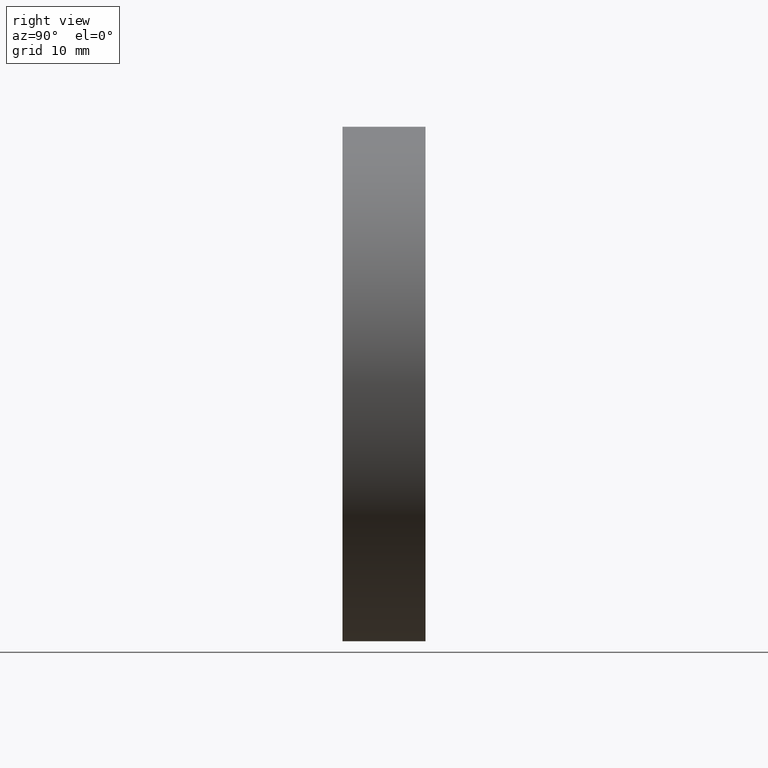
[diagram: clean part render]
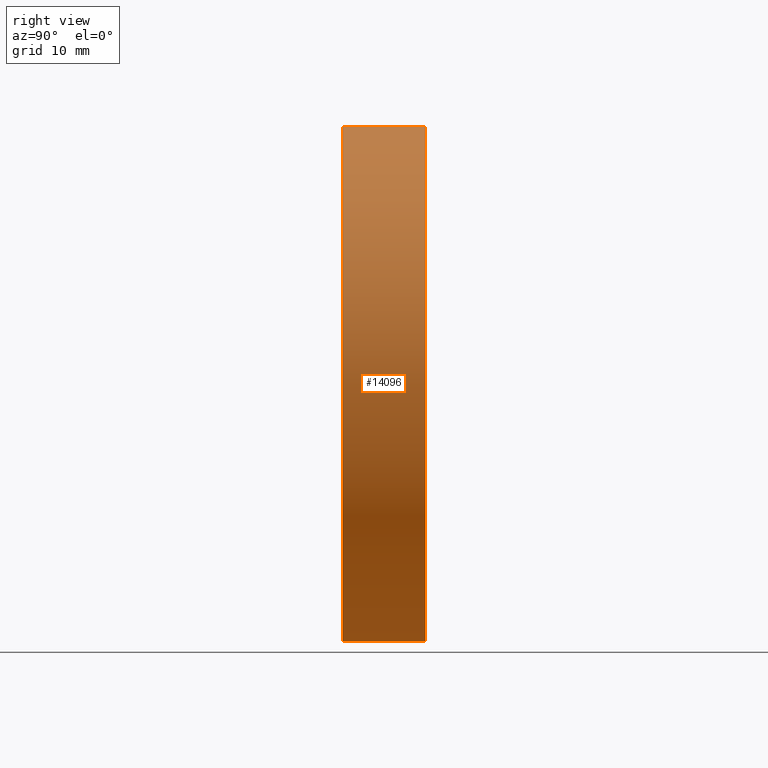
[diagram: same view with one face highlighted and labeled with its STEP entity id]
A machine part, right view. The second image highlights one B-rep face of the part: STEP entity #14096.
In plain terms, the highlighted cylindrical surface (partial cylindrical patch) has radius 31 mm, axis along (-0, 1, -0).
Its self-contained STEP definition (entity closure, byte-faithful):
#134 = EDGE_CURVE ( 'NONE', #7354, #4005, #5082, .T. ) ;
#399 = DIRECTION ( 'NONE',  ( 0.000000000000000000, 0.000000000000000000, 1.000000000000000000 ) ) ;
#1055 = ORIENTED_EDGE ( 'NONE', *, *, #5309, .T. ) ;
#1111 = VERTEX_POINT ( 'NONE', #2724 ) ;
#1401 = EDGE_LOOP ( 'NONE', ( #12893, #1055, #9898, #8104 ) ) ;
#1476 = VECTOR ( 'NONE', #13047, 1000.000000000000000 ) ;
#1664 = VERTEX_POINT ( 'NONE', #9102 ) ;
#1866 = DIRECTION ( 'NONE',  ( -0.000000000000000000, 1.000000000000000000, -0.000000000000000000 ) ) ;
#2011 = DIRECTION ( 'NONE',  ( 0.000000000000000000, 0.000000000000000000, 1.000000000000000000 ) ) ;
#2165 = LINE ( 'NONE', #11892, #1476 ) ;
#2270 = LINE ( 'NONE', #12253, #14266 ) ;
#2331 = FACE_OUTER_BOUND ( 'NONE', #1401, .T. ) ;
#2428 = CARTESIAN_POINT ( 'NONE',  ( 3.796405077356795115E-15, -3.469446951953614189E-15, -31.00000000000000000 ) ) ;
#2724 = CARTESIAN_POINT ( 'NONE',  ( 0.000000000000000000, 9.999999999999996447, 31.00000000000000355 ) ) ;
#3621 = DIRECTION ( 'NONE',  ( 0.000000000000000000, 0.000000000000000000, 1.000000000000000000 ) ) ;
#4005 = VERTEX_POINT ( 'NONE', #2428 ) ;
#5082 = CIRCLE ( 'NONE', #11395, 31.00000000000000000 ) ;
#5309 = EDGE_CURVE ( 'NONE', #4005, #1664, #2270, .T. ) ;
#5743 = DIRECTION ( 'NONE',  ( -0.000000000000000000, 1.000000000000000000, -0.000000000000000000 ) ) ;
#6096 = EDGE_CURVE ( 'NONE', #7354, #1111, #2165, .T. ) ;
#6332 = CYLINDRICAL_SURFACE ( 'NONE', #7657, 31.00000000000000000 ) ;
#7054 = CARTESIAN_POINT ( 'NONE',  ( 0.000000000000000000, 9.999999999999996447, 0.000000000000000000 ) ) ;
#7119 = CARTESIAN_POINT ( 'NONE',  ( 0.000000000000000000, -3.469446951953614189E-15, 31.00000000000000000 ) ) ;
#7354 = VERTEX_POINT ( 'NONE', #7119 ) ;
#7657 = AXIS2_PLACEMENT_3D ( 'NONE', #13604, #5743, #3621 ) ;
#8060 = DIRECTION ( 'NONE',  ( -0.000000000000000000, 1.000000000000000000, -0.000000000000000000 ) ) ;
#8104 = ORIENTED_EDGE ( 'NONE', *, *, #6096, .F. ) ;
#8205 = AXIS2_PLACEMENT_3D ( 'NONE', #7054, #8060, #399 ) ;
#8507 = EDGE_CURVE ( 'NONE', #1111, #1664, #12763, .T. ) ;
#9102 = CARTESIAN_POINT ( 'NONE',  ( 3.796405077356795904E-15, 9.999999999999996447, -31.00000000000000711 ) ) ;
#9898 = ORIENTED_EDGE ( 'NONE', *, *, #8507, .F. ) ;
#10225 = DIRECTION ( 'NONE',  ( -0.000000000000000000, 1.000000000000000000, -0.000000000000000000 ) ) ;
#10706 = CARTESIAN_POINT ( 'NONE',  ( 0.000000000000000000, -3.469446951953614189E-15, 0.000000000000000000 ) ) ;
#11395 = AXIS2_PLACEMENT_3D ( 'NONE', #10706, #1866, #2011 ) ;
#11892 = CARTESIAN_POINT ( 'NONE',  ( 0.000000000000000000, 9.999999999999996447, 31.00000000000000000 ) ) ;
#12253 = CARTESIAN_POINT ( 'NONE',  ( 3.796405077356795115E-15, 9.999999999999996447, -31.00000000000000000 ) ) ;
#12763 = CIRCLE ( 'NONE', #8205, 31.00000000000000355 ) ;
#12893 = ORIENTED_EDGE ( 'NONE', *, *, #134, .T. ) ;
#13047 = DIRECTION ( 'NONE',  ( -0.000000000000000000, 1.000000000000000000, -0.000000000000000000 ) ) ;
#13604 = CARTESIAN_POINT ( 'NONE',  ( 0.000000000000000000, 9.999999999999996447, 0.000000000000000000 ) ) ;
#14096 = ADVANCED_FACE ( 'NONE', ( #2331 ), #6332, .T. ) ;
#14266 = VECTOR ( 'NONE', #10225, 1000.000000000000000 ) ;